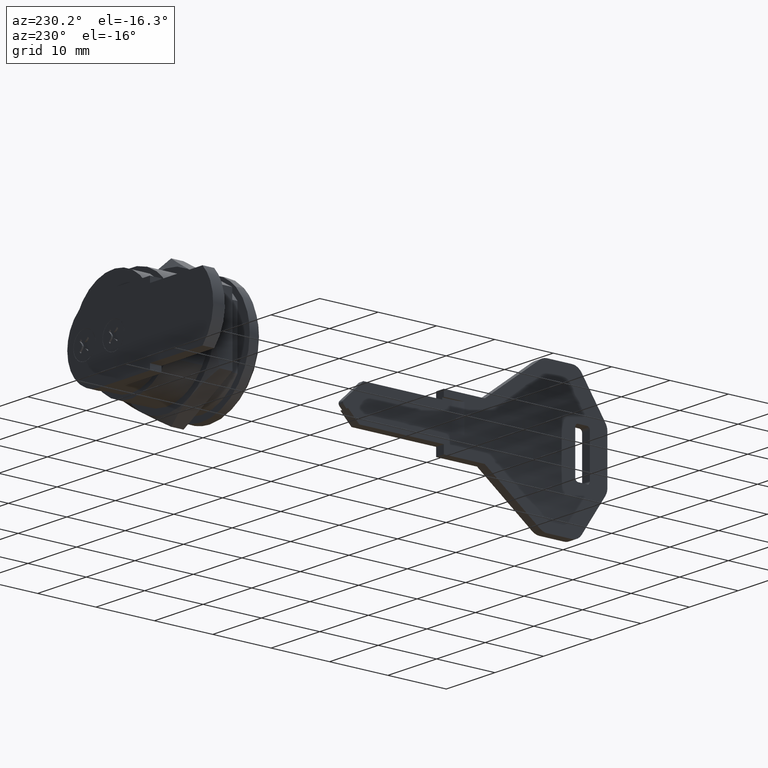
[diagram: clean part render]
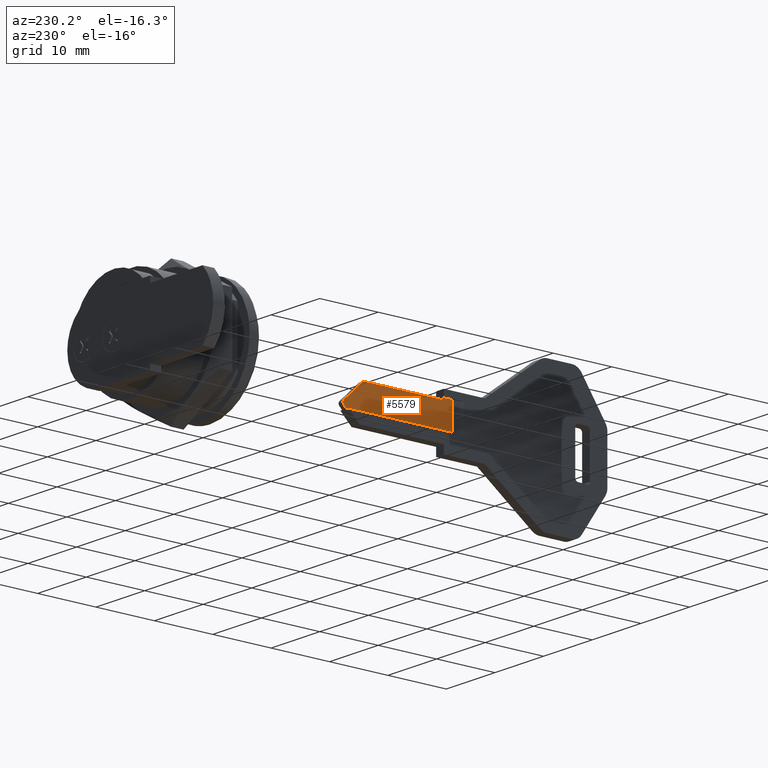
[diagram: same view with one face highlighted and labeled with its STEP entity id]
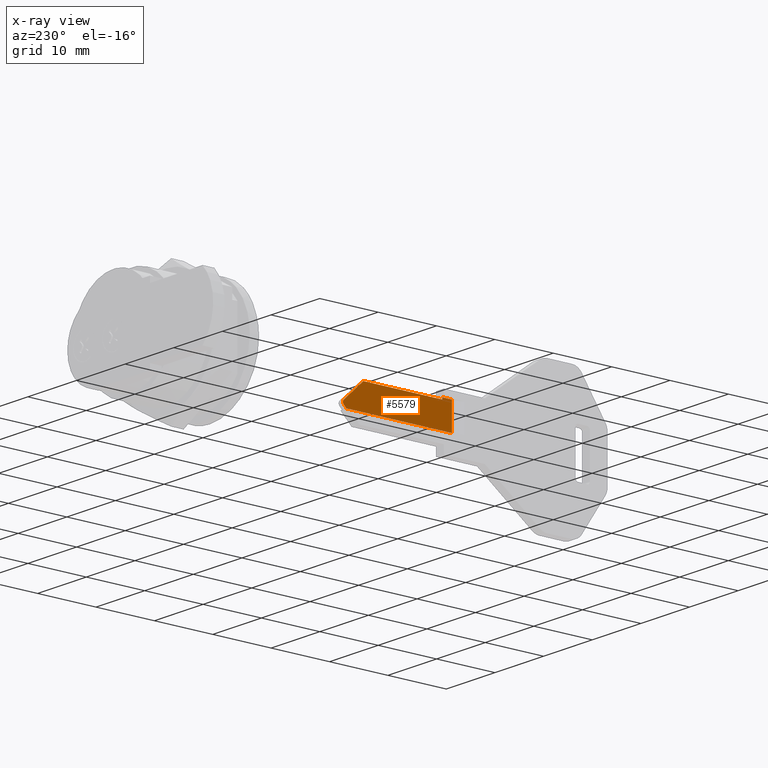
[diagram: x-ray of the same camera — body ghosted, the highlighted face saturated]
A machine part, auxiliary view. The second image highlights one B-rep face of the part: STEP entity #5579.
The next image is the same camera in x-ray: the body ghosted, the highlighted face saturated — about 0% of this face is hidden behind the body in this view.
In plain terms, the highlighted face is a freeform B-spline surface patch.
Its self-contained STEP definition (entity closure, byte-faithful):
#5435=CARTESIAN_POINT('',(-40.597002405051001,0.450000000000062,1.0));
#5436=VERTEX_POINT('',#5435);
#5446=CARTESIAN_POINT('',(-40.597002405051001,0.450000000000062,-3.600000000000110));
#5447=VERTEX_POINT('',#5446);
#5448=CARTESIAN_POINT('',(-40.597002405051001,0.450000000000062,-3.600000000000110));
#5449=CARTESIAN_POINT('',(-40.597002405051001,0.450000000000062,1.0));
#5450=QUASI_UNIFORM_CURVE('',1,(#5448,#5449),.UNSPECIFIED.,.F.,.U.);
#5451=EDGE_CURVE('',#5447,#5436,#5450,.T.);
#5519=CARTESIAN_POINT('',(-41.529178981064383,0.449999999999989,-3.829769904721406));
#5520=CARTESIAN_POINT('',(-21.002667630867940,0.449999999999989,-3.829769904721406));
#5521=CARTESIAN_POINT('',(-41.529178981064383,0.449999999999989,1.229770110357319));
#5522=CARTESIAN_POINT('',(-21.002667630867951,0.449999999999989,1.229770110357319));
#5523=B_SPLINE_SURFACE_WITH_KNOTS('',1,1,((#5519,#5521),(#5520,#5522)),.UNSPECIFIED.,.F.,.F.,.U.,(2,2),(2,2),(0.0,20.526511350196429),(0.0,5.059540015078725),.UNSPECIFIED.);
#5524=CARTESIAN_POINT('',(-22.529130775788651,0.450000000000006,-3.600000000000110));
#5525=VERTEX_POINT('',#5524);
#5526=CARTESIAN_POINT('',(-40.597002405051001,0.450000000000062,-3.600000000000110));
#5527=CARTESIAN_POINT('',(-22.529130775788651,0.450000000000006,-3.600000000000110));
#5528=QUASI_UNIFORM_CURVE('',1,(#5526,#5527),.UNSPECIFIED.,.F.,.U.);
#5529=EDGE_CURVE('',#5447,#5525,#5528,.T.);
#5530=ORIENTED_EDGE('',*,*,#5529,.F.);
#5531=ORIENTED_EDGE('',*,*,#5451,.T.);
#5532=CARTESIAN_POINT('',(-38.934800000000003,0.450000000000062,1.0));
#5533=VERTEX_POINT('',#5532);
#5534=CARTESIAN_POINT('',(-38.934800000000003,0.450000000000062,1.0));
#5535=CARTESIAN_POINT('',(-40.597002405051001,0.450000000000062,1.0));
#5536=QUASI_UNIFORM_CURVE('',1,(#5534,#5535),.UNSPECIFIED.,.F.,.U.);
#5537=EDGE_CURVE('',#5533,#5436,#5536,.T.);
#5538=ORIENTED_EDGE('',*,*,#5537,.F.);
#5539=CARTESIAN_POINT('',(-38.934800000000003,0.449999999999951,0.699999999999875));
#5540=VERTEX_POINT('',#5539);
#5541=CARTESIAN_POINT('',(-38.934800000000003,0.449999999999951,0.699999999999875));
#5542=CARTESIAN_POINT('',(-38.934800000000003,0.450000000000062,1.0));
#5543=QUASI_UNIFORM_CURVE('',1,(#5541,#5542),.UNSPECIFIED.,.F.,.U.);
#5544=EDGE_CURVE('',#5540,#5533,#5543,.T.);
#5545=ORIENTED_EDGE('',*,*,#5544,.F.);
#5546=CARTESIAN_POINT('',(-25.434799999999999,0.449999999999951,0.699999999999875));
#5547=VERTEX_POINT('',#5546);
#5548=CARTESIAN_POINT('',(-25.434799999999999,0.449999999999951,0.699999999999875));
#5549=CARTESIAN_POINT('',(-38.934800000000003,0.449999999999951,0.699999999999875));
#5550=QUASI_UNIFORM_CURVE('',1,(#5548,#5549),.UNSPECIFIED.,.F.,.U.);
#5551=EDGE_CURVE('',#5547,#5540,#5550,.T.);
#5552=ORIENTED_EDGE('',*,*,#5551,.F.);
#5553=CARTESIAN_POINT('',(-22.109979539785051,0.449999999999951,-2.419879402523710));
#5554=VERTEX_POINT('',#5553);
#5555=CARTESIAN_POINT('',(-22.109979539785051,0.449999999999951,-2.419879402523710));
#5556=CARTESIAN_POINT('',(-25.434799999999999,0.449999999999951,0.699999999999875));
#5557=QUASI_UNIFORM_CURVE('',1,(#5555,#5556),.UNSPECIFIED.,.F.,.U.);
#5558=EDGE_CURVE('',#5554,#5547,#5557,.T.);
#5559=ORIENTED_EDGE('',*,*,#5558,.F.);
#5560=CARTESIAN_POINT('',(-22.075693743175851,0.449999999999951,-3.147911908835790));
#5561=VERTEX_POINT('',#5560);
#5562=CARTESIAN_POINT('',(-22.109979539785051,0.449999999999951,-2.419879402523710));
#5563=CARTESIAN_POINT('',(-22.058178000894099,0.449999999999951,-2.464033070505176));
#5564=CARTESIAN_POINT('',(-21.989127361849359,0.449999999999951,-2.553339886982078));
#5565=CARTESIAN_POINT('',(-21.931105681503428,0.449999999999950,-2.723849122891411));
#5566=CARTESIAN_POINT('',(-21.931860160960891,0.449999999999951,-2.932286054813686));
#5567=CARTESIAN_POINT('',(-22.010341663188701,0.449999999999950,-3.080862779864707));
#5568=CARTESIAN_POINT('',(-22.075693743175851,0.449999999999951,-3.147911908835790));
#5569=B_SPLINE_CURVE_WITH_KNOTS('',3,(#5562,#5563,#5564,#5565,#5566,#5567,#5568),.UNSPECIFIED.,.F.,.U.,(4,1,1,1,4),(0.000000183195194,0.204178600535804,0.331802858857176,0.535956079524435,0.816713852557643),.UNSPECIFIED.);
#5570=EDGE_CURVE('',#5554,#5561,#5569,.T.);
#5571=ORIENTED_EDGE('',*,*,#5570,.T.);
#5572=CARTESIAN_POINT('',(-22.529130775788651,0.450000000000006,-3.600000000000110));
#5573=CARTESIAN_POINT('',(-22.075693743175851,0.449999999999951,-3.147911908835790));
#5574=QUASI_UNIFORM_CURVE('',1,(#5572,#5573),.UNSPECIFIED.,.F.,.U.);
#5575=EDGE_CURVE('',#5525,#5561,#5574,.T.);
#5576=ORIENTED_EDGE('',*,*,#5575,.F.);
#5577=EDGE_LOOP('',(#5530,#5531,#5538,#5545,#5552,#5559,#5571,#5576));
#5578=FACE_OUTER_BOUND('',#5577,.T.);
#5579=ADVANCED_FACE('',(#5578),#5523,.F.);